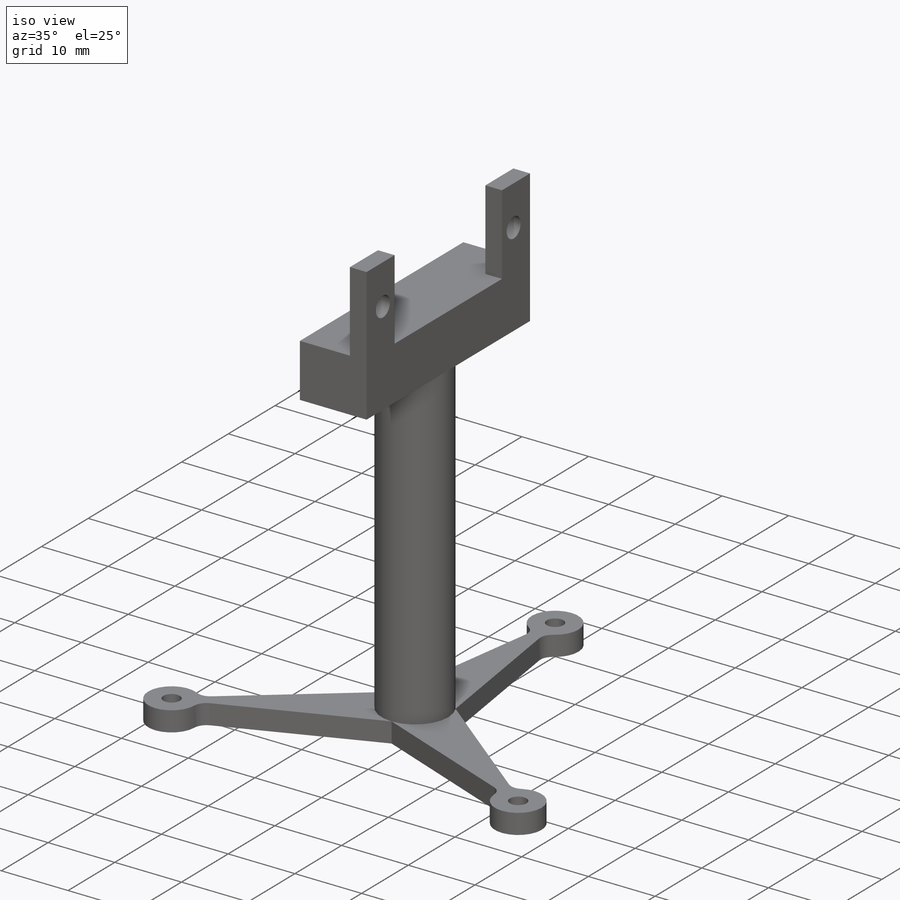
[diagram: iso view]
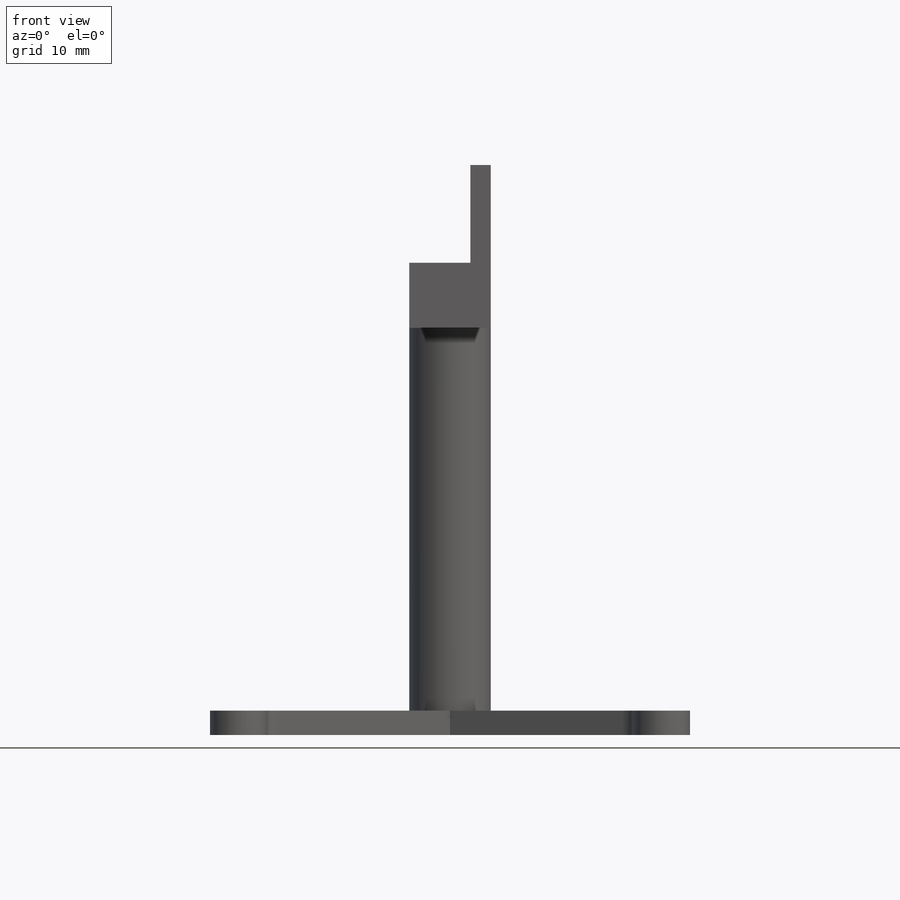
[diagram: front view]
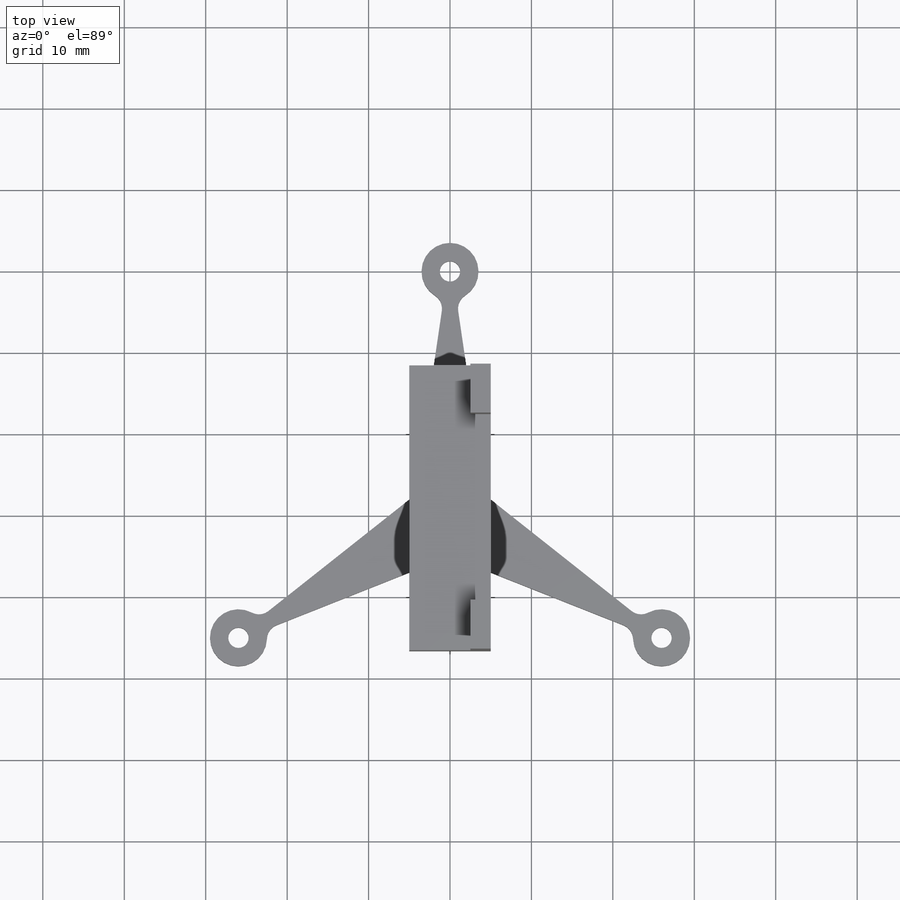
[diagram: top view]
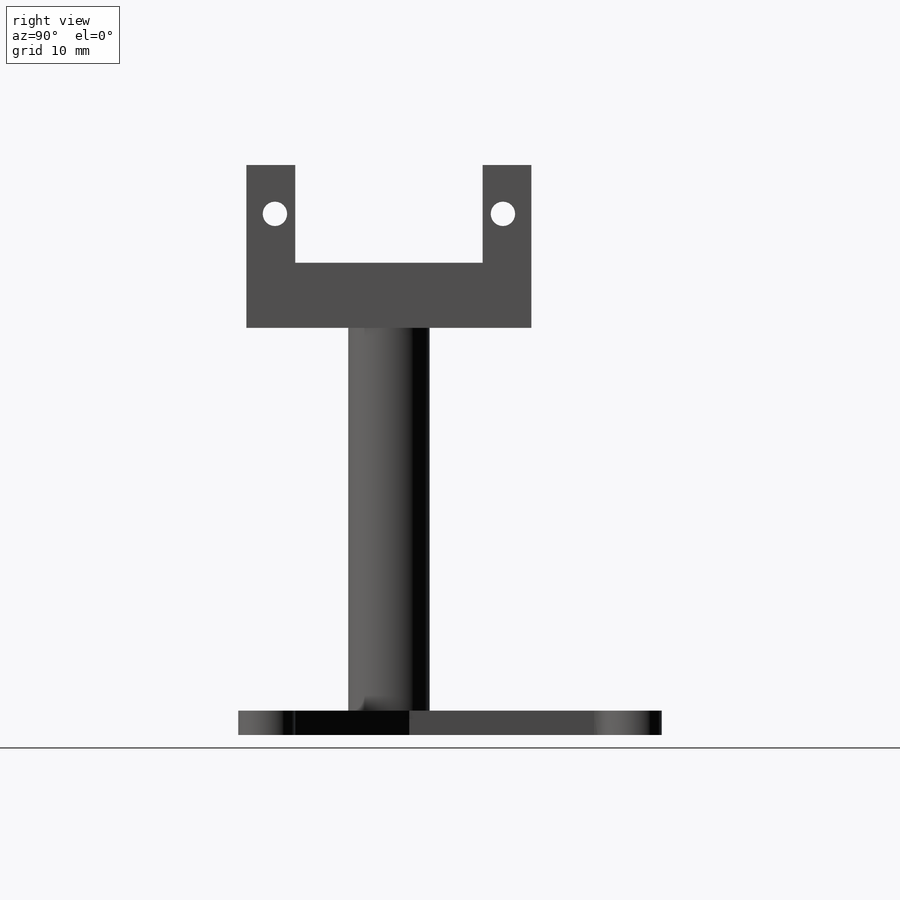
[diagram: right view]
SOLIDWORKS PART (.sldprt)
format: sldprt  version: not decoded by parser v0  size: 222,208 bytes
history: native  units: mm
features: sketch x6, extrude x3, material x1, revolve x1, pattern_circular x1, cut_extrude x1 (+13 scaffold rows collapsed)
feature tree (26):
  scaffold x13  (default folders/planes/origin — collapsed)
  material  "Material <not specified>"
  sketch  "Sketch1"  dims[D1=50.0mm D2=5.0mm]
  revolve  "Revolve1"  Angle=360deg
  sketch  "Sketch2"  dims[c1.D2=7.0mm c1.D3=2.5mm c1.D5=5.0mm c1.D1=30.0mm c1.D4=~3.710075mm c1.D6=~1.272912mm c2.D5=2.0mm]
  extrude  "Boss-Extrude1"  Depth=3mm
  pattern_circular  "CirPattern1"  Count=3 Angle=360deg
  sketch  "Sketch3"  dims[c1.5=3.0mm c1.D7=4.0mm c1.D1=35.0mm c1.D2=~1.825874mm c1.D3=~28.348252mm c2.D2=23.0mm c2.D3=20.0mm c2.D4=20.0mm c2.D5=12.0mm c2.D6=6.0mm c2.D7=2.5mm c2.D8=2.5mm]
  extrude  "Boss-Extrude2"  Depth=5mm
  extrude  "Boss-Extrude3"  [1 undecoded]
  sketch  "Sketch3<3>"  dims[D1=5.0mm]
  sketch  "Sketch4"  dims[D1=12.0mm]
  cut_extrude  "Cut-Extrude1"  [1 undecoded]
  sketch  "Sketch5"  dims[D1=23.0mm]
decode coverage: 10 of 12 modeling features carry decoded parameters
note: ~ marks probable driven/reference dimensions
note: 2 parameter values undecoded
note: suppression state not decoded; provenance and decode notes live in map.json
